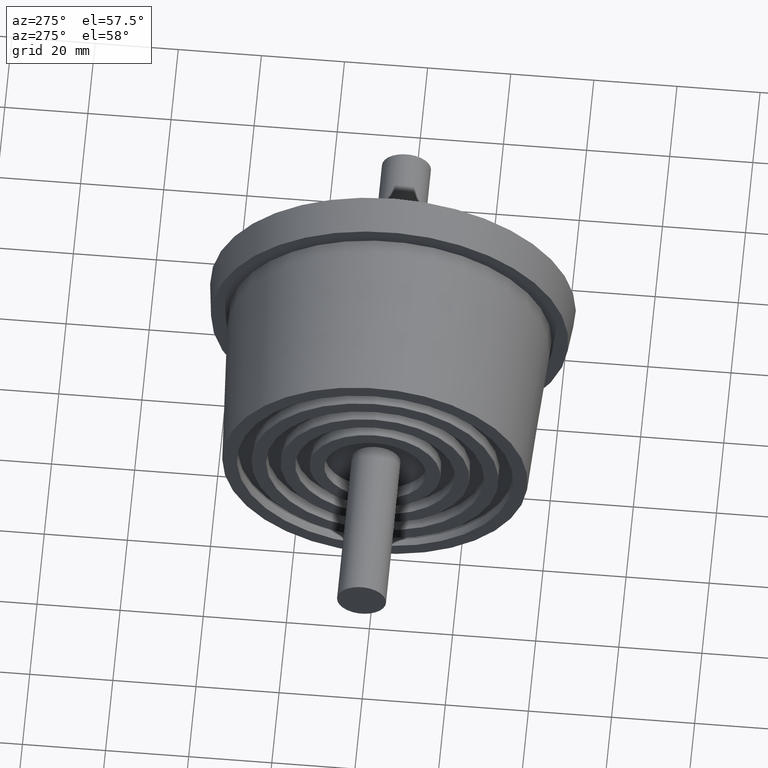
[diagram: clean part render]
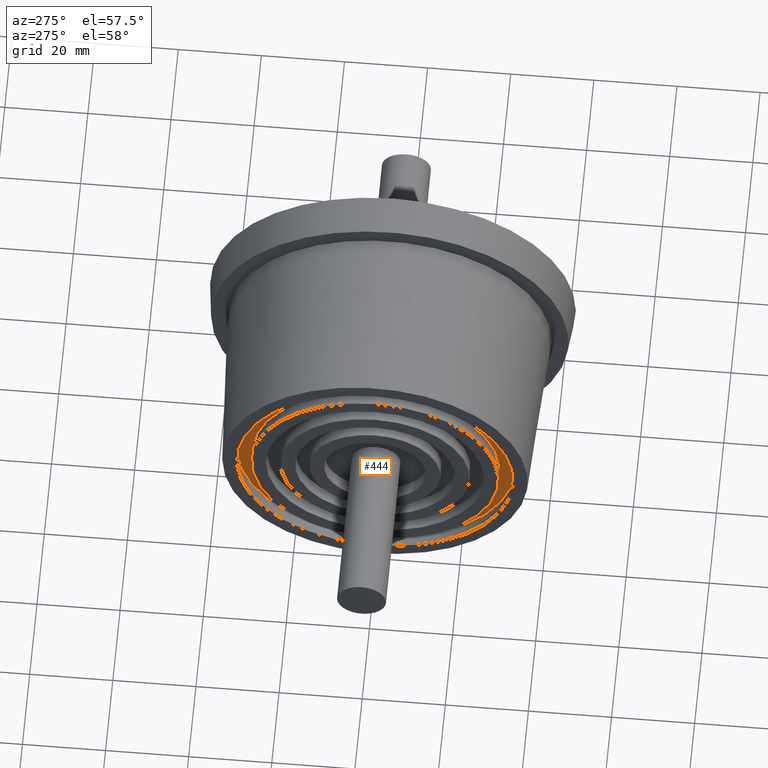
[diagram: same view with one face highlighted and labeled with its STEP entity id]
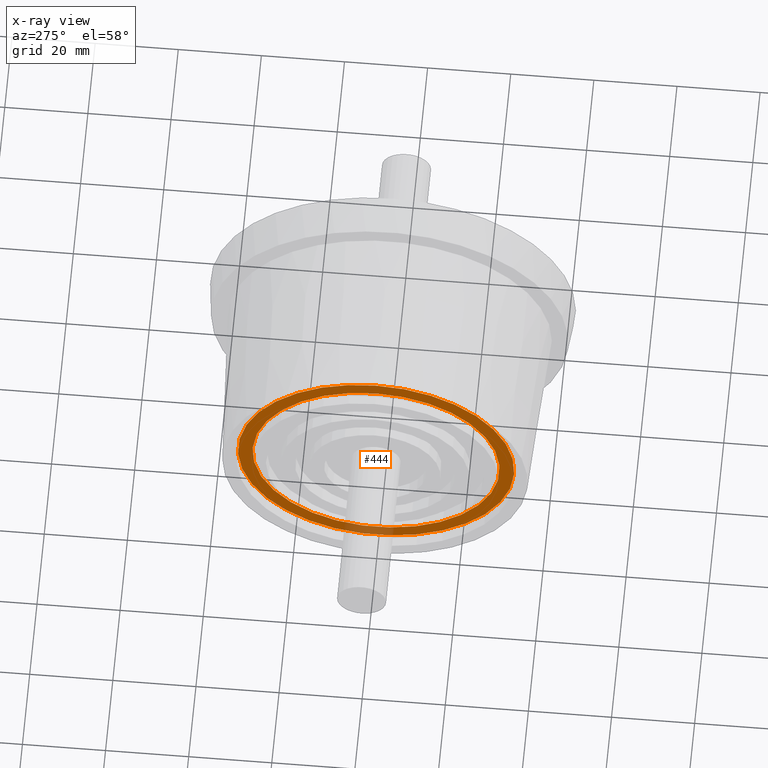
[diagram: x-ray of the same camera — body ghosted, the highlighted face saturated]
A machine part, auxiliary view. The second image highlights one B-rep face of the part: STEP entity #444.
The next image is the same camera in x-ray: the body ghosted, the highlighted face saturated — about 6% of this face is hidden behind the body in this view.
In plain terms, the highlighted planar face has unit normal (-1, -0, 0).
Its self-contained STEP definition (entity closure, byte-faithful):
#29=PLANE('',#522);
#66=FACE_BOUND('',#175,.T.);
#105=FACE_OUTER_BOUND('',#174,.T.);
#174=EDGE_LOOP('',(#374));
#175=EDGE_LOOP('',(#375));
#229=CIRCLE('',#517,29.75);
#231=CIRCLE('',#520,33.25);
#269=VERTEX_POINT('',#794);
#271=VERTEX_POINT('',#799);
#309=EDGE_CURVE('',#269,#269,#229,.T.);
#311=EDGE_CURVE('',#271,#271,#231,.T.);
#374=ORIENTED_EDGE('',*,*,#311,.F.);
#375=ORIENTED_EDGE('',*,*,#309,.F.);
#444=ADVANCED_FACE('',(#105,#66),#29,.T.);
#517=AXIS2_PLACEMENT_3D('',#795,#658,#659);
#520=AXIS2_PLACEMENT_3D('',#800,#664,#665);
#522=AXIS2_PLACEMENT_3D('',#803,#668,#669);
#658=DIRECTION('center_axis',(-1.,-1.83697019872103E-16,0.));
#659=DIRECTION('ref_axis',(0.,0.,-1.));
#664=DIRECTION('center_axis',(1.,1.83697019872103E-16,0.));
#665=DIRECTION('ref_axis',(0.,0.,-1.));
#668=DIRECTION('center_axis',(-1.,-1.83697019872103E-16,0.));
#669=DIRECTION('ref_axis',(0.,0.,1.));
#794=CARTESIAN_POINT('',(-21.75,1.09912050223475E-14,29.75));
#795=CARTESIAN_POINT('Origin',(-21.75,7.34788079488412E-15,0.));
#799=CARTESIAN_POINT('',(-21.75,1.14198314020491E-14,33.25));
#800=CARTESIAN_POINT('Origin',(-21.75,7.34788079488412E-15,0.));
#803=CARTESIAN_POINT('Origin',(-21.75,9.25232701043268E-15,-1.22973364804081E-15));